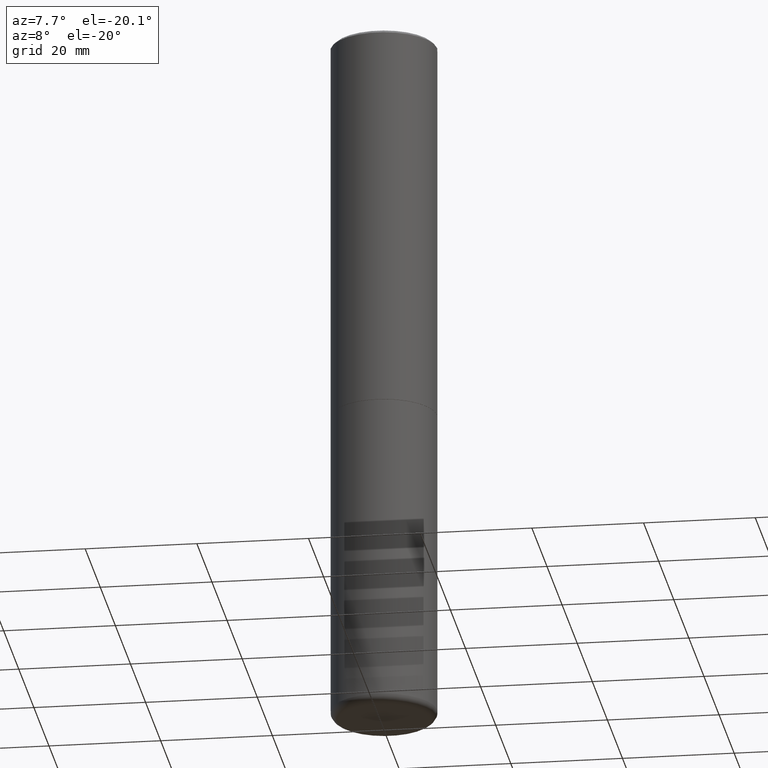
[diagram: clean part render]
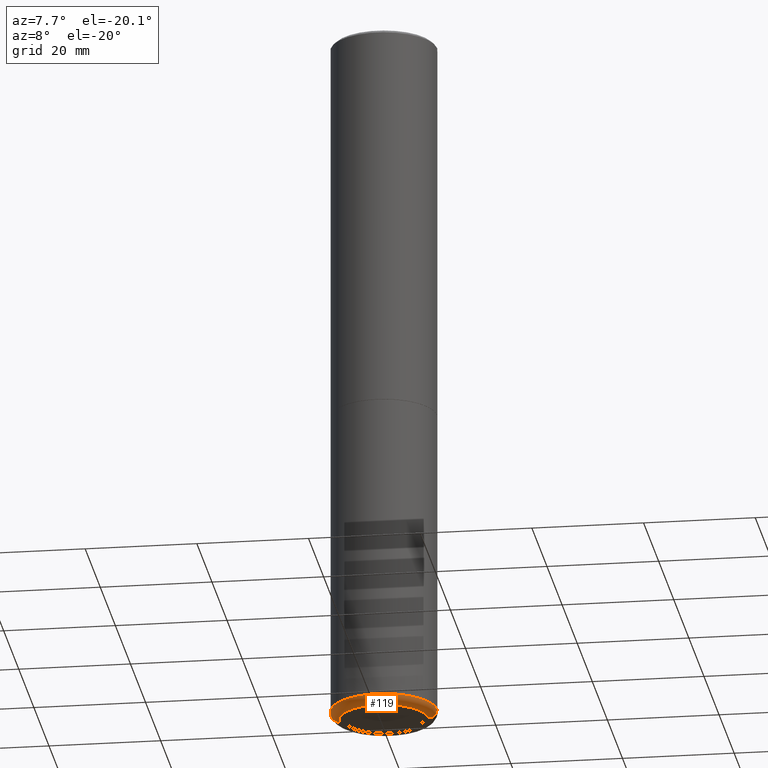
[diagram: same view with one face highlighted and labeled with its STEP entity id]
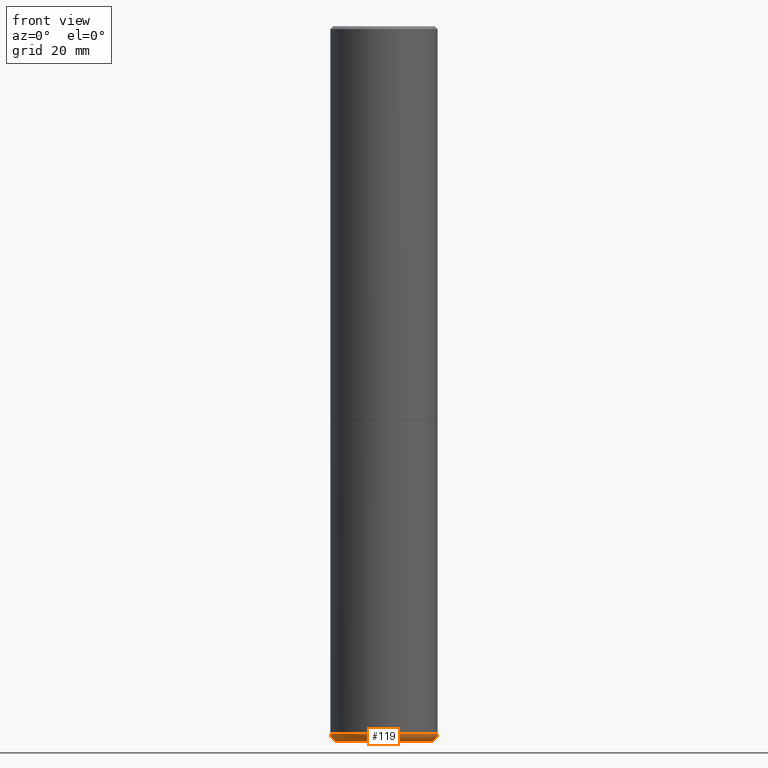
[diagram: same view with one face highlighted and labeled with its STEP entity id]
A machine part, auxiliary view. The second image highlights one B-rep face of the part: STEP entity #119.
A second angle (front view) of the same face is appended — the face is thin or edge-on in the first view.
In plain terms, the highlighted toroidal blend (fillet) surface has major radius 8.001 mm and minor (blend) radius 1.524 mm.
Its self-contained STEP definition (entity closure, byte-faithful):
#4 = CIRCLE ( 'NONE', #378, 0.05999999999999963002 ) ;
#22 = VERTEX_POINT ( 'NONE', #38 ) ;
#38 = CARTESIAN_POINT ( 'NONE',  ( -0.3144764078700981735, -1.490315397694742864E-14, -5.000000000000000000 ) ) ;
#45 = DIRECTION ( 'NONE',  ( 1.000000000000000000, -6.982962677686263555E-15, 0.000000000000000000 ) ) ;
#71 = EDGE_CURVE ( 'NONE', #22, #428, #257, .T. ) ;
#117 = CARTESIAN_POINT ( 'NONE',  ( 0.3150000000000003353, -1.944755903405096897E-14, -4.940002284616149986 ) ) ;
#119 = ADVANCED_FACE ( 'NONE', ( #371 ), #413, .T. ) ;
#127 = DIRECTION ( 'NONE',  ( -2.445468806185136597E-29, 3.491481338843145583E-15, 1.000000000000000000 ) ) ;
#172 = DIRECTION ( 'NONE',  ( -2.445468806185136597E-29, 3.491481338843145583E-15, 1.000000000000000000 ) ) ;
#185 = DIRECTION ( 'NONE',  ( 7.105427357601001859E-15, 1.000000000000000000, -3.491481338843145583E-15 ) ) ;
#198 = VERTEX_POINT ( 'NONE', #313 ) ;
#205 = AXIS2_PLACEMENT_3D ( 'NONE', #338, #478, #492 ) ;
#206 = AXIS2_PLACEMENT_3D ( 'NONE', #479, #172, #252 ) ;
#247 = EDGE_CURVE ( 'NONE', #428, #304, #322, .T. ) ;
#252 = DIRECTION ( 'NONE',  ( 1.000000000000000000, -6.982962677686273810E-15, 0.000000000000000000 ) ) ;
#257 = CIRCLE ( 'NONE', #432, 0.05999999999999963002 ) ;
#270 = EDGE_LOOP ( 'NONE', ( #462, #461, #326, #323 ) ) ;
#273 = DIRECTION ( 'NONE',  ( -6.982962677686266711E-15, -1.000000000000000000, 3.491481338843145583E-15 ) ) ;
#274 = CARTESIAN_POINT ( 'NONE',  ( 0.3749999999999999445, -1.986653679471214244E-14, -4.940002284616149986 ) ) ;
#298 = CARTESIAN_POINT ( 'NONE',  ( -0.3150000000000003353, -1.500971617293547722E-14, -4.940002284616149986 ) ) ;
#304 = VERTEX_POINT ( 'NONE', #274 ) ;
#313 = CARTESIAN_POINT ( 'NONE',  ( 0.3144764078700981735, -1.965338371338547073E-14, -5.000000000000000000 ) ) ;
#316 = DIRECTION ( 'NONE',  ( 1.000000000000000000, -6.982962677686246200E-15, 0.000000000000000000 ) ) ;
#322 = CIRCLE ( 'NONE', #424, 0.3749999999999999445 ) ;
#323 = ORIENTED_EDGE ( 'NONE', *, *, #247, .F. ) ;
#326 = ORIENTED_EDGE ( 'NONE', *, *, #452, .T. ) ;
#336 = DIRECTION ( 'NONE',  ( -1.000000000000000000, 7.105427357601001859E-15, 0.000000000000000000 ) ) ;
#338 = CARTESIAN_POINT ( 'NONE',  ( 1.208062148951210544E-28, -1.724792579057979243E-14, -4.940002284616149986 ) ) ;
#371 = FACE_OUTER_BOUND ( 'NONE', #270, .T. ) ;
#374 = CARTESIAN_POINT ( 'NONE',  ( -0.3749999999999999445, -1.076021447709884624E-14, -4.940002284616149986 ) ) ;
#378 = AXIS2_PLACEMENT_3D ( 'NONE', #117, #273, #316 ) ;
#382 = CARTESIAN_POINT ( 'NONE',  ( 1.208062148951210544E-28, -1.724792579057979243E-14, -4.940002284616149986 ) ) ;
#413 = TOROIDAL_SURFACE ( 'NONE', #205, 0.3150000000000003353, 0.05999999999999961614 ) ;
#424 = AXIS2_PLACEMENT_3D ( 'NONE', #382, #127, #45 ) ;
#428 = VERTEX_POINT ( 'NONE', #374 ) ;
#432 = AXIS2_PLACEMENT_3D ( 'NONE', #298, #185, #336 ) ;
#448 = CIRCLE ( 'NONE', #206, 0.3144764078700981735 ) ;
#452 = EDGE_CURVE ( 'NONE', #198, #304, #4, .T. ) ;
#461 = ORIENTED_EDGE ( 'NONE', *, *, #481, .T. ) ;
#462 = ORIENTED_EDGE ( 'NONE', *, *, #71, .F. ) ;
#478 = DIRECTION ( 'NONE',  ( -2.445468806185136597E-29, 3.491481338843145583E-15, 1.000000000000000000 ) ) ;
#479 = CARTESIAN_POINT ( 'NONE',  ( 1.222734403092568523E-28, -1.745740669421572989E-14, -5.000000000000000000 ) ) ;
#481 = EDGE_CURVE ( 'NONE', #22, #198, #448, .T. ) ;
#492 = DIRECTION ( 'NONE',  ( 1.000000000000000000, -6.982962677686263555E-15, 4.883557194083111219E-29 ) ) ;